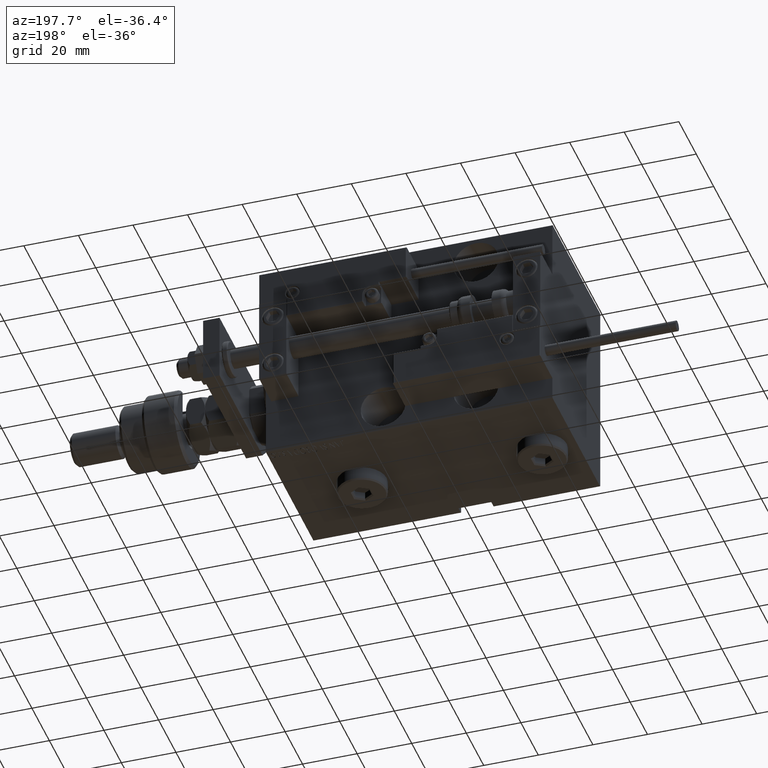
[diagram: clean part render]
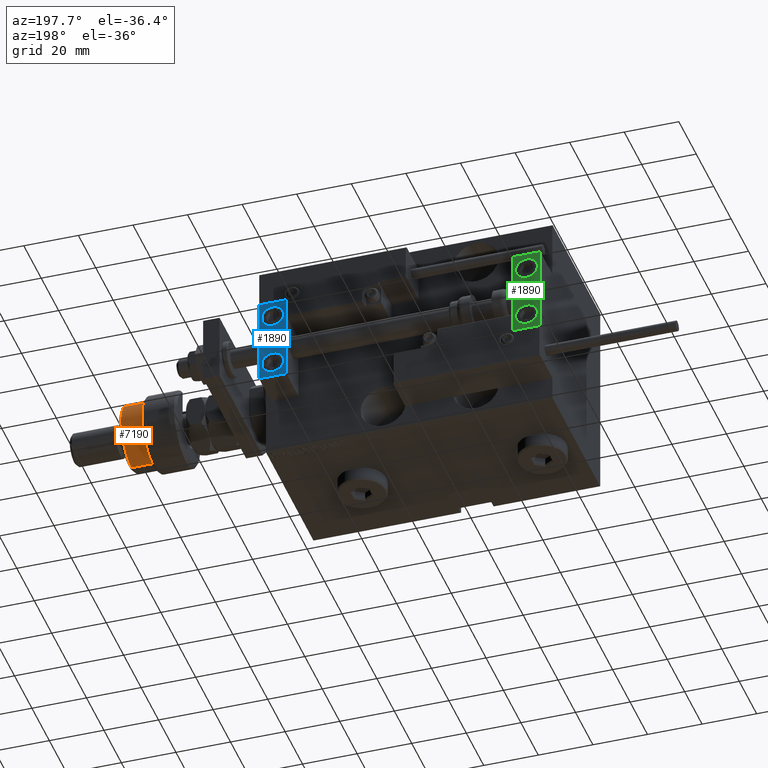
[diagram: same view with three faces highlighted in distinct colors, each labeled with its STEP entity id]
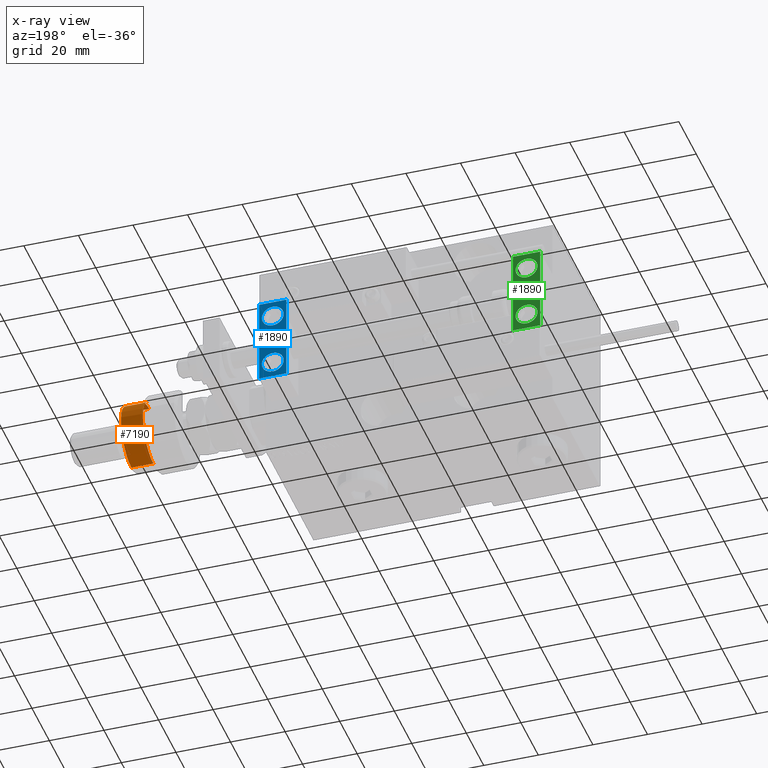
[diagram: x-ray of the same camera — body ghosted, the three highlighted faces saturated]
A machine part, auxiliary view with three faces highlighted in distinct colors.
The next image is the same camera in x-ray (body ghosted, the three faces saturated) — at least one of them is partly hidden behind the body in this view.
Their STEP definitions:

[orange] entity #7190 — the highlighted cylindrical surface (edge-blend (fillet) strip) has radius 12 mm, axis along (-1, -0, 0).
#3060 = CIRCLE ( 'NONE', #11763, 12.00000000000000178 ) ;
#5576 = EDGE_CURVE ( 'NONE', #53391, #20220, #3060, .T. ) ;
#6259 = DIRECTION ( 'NONE',  ( 0.000000000000000000, 0.000000000000000000, 1.000000000000000000 ) ) ;
#7190 = ADVANCED_FACE ( 'NONE', ( #16830 ), #53733, .T. ) ;
#7844 = ORIENTED_EDGE ( 'NONE', *, *, #24364, .F. ) ;
#8416 = CARTESIAN_POINT ( 'NONE',  ( 12.00000000000000178, 1.469576158976824144E-15, 13.00000000000000000 ) ) ;
#8796 = LINE ( 'NONE', #21670, #34477 ) ;
#10046 = DIRECTION ( 'NONE',  ( 1.000000000000000000, 0.000000000000000000, 0.000000000000000000 ) ) ;
#10848 = DIRECTION ( 'NONE',  ( -0.000000000000000000, -0.000000000000000000, -1.000000000000000000 ) ) ;
#11763 = AXIS2_PLACEMENT_3D ( 'NONE', #48072, #39050, #10046 ) ;
#13193 = ORIENTED_EDGE ( 'NONE', *, *, #24051, .T. ) ;
#13290 = ORIENTED_EDGE ( 'NONE', *, *, #5576, .T. ) ;
#13495 = CIRCLE ( 'NONE', #26572, 12.00000000000000178 ) ;
#14358 = AXIS2_PLACEMENT_3D ( 'NONE', #43735, #6259, #30600 ) ;
#14381 = VECTOR ( 'NONE', #36607, 1000.000000000000000 ) ;
#14529 = CARTESIAN_POINT ( 'NONE',  ( -10.39230484541326760, 6.000000000000000000, 13.00000000000000000 ) ) ;
#15111 = ORIENTED_EDGE ( 'NONE', *, *, #24495, .T. ) ;
#16085 = VECTOR ( 'NONE', #10848, 1000.000000000000000 ) ;
#16830 = FACE_OUTER_BOUND ( 'NONE', #28903, .T. ) ;
#19376 = LINE ( 'NONE', #19910, #14381 ) ;
#19865 = CARTESIAN_POINT ( 'NONE',  ( -12.00000000000000178, 0.000000000000000000, 22.00000000000000000 ) ) ;
#19910 = CARTESIAN_POINT ( 'NONE',  ( -10.39230484541326760, 6.000000000000000000, 22.00000000000000000 ) ) ;
#20220 = VERTEX_POINT ( 'NONE', #23702 ) ;
#21486 = VERTEX_POINT ( 'NONE', #8416 ) ;
#21670 = CARTESIAN_POINT ( 'NONE',  ( 12.00000000000000178, 1.469576158976824144E-15, 22.00000000000000000 ) ) ;
#22457 = CARTESIAN_POINT ( 'NONE',  ( -12.00000000000000178, 0.000000000000000000, 14.50000000000000000 ) ) ;
#23702 = CARTESIAN_POINT ( 'NONE',  ( 12.00000000000000178, 1.469576158976824144E-15, 20.99999999999998224 ) ) ;
#24051 = EDGE_CURVE ( 'NONE', #21486, #25365, #38813, .T. ) ;
#24071 = ORIENTED_EDGE ( 'NONE', *, *, #48147, .T. ) ;
#24364 = EDGE_CURVE ( 'NONE', #46827, #48201, #13495, .T. ) ;
#24406 = DIRECTION ( 'NONE',  ( 0.000000000000000000, 0.000000000000000000, -1.000000000000000000 ) ) ;
#24495 = EDGE_CURVE ( 'NONE', #20220, #21486, #8796, .T. ) ;
#25365 = VERTEX_POINT ( 'NONE', #14529 ) ;
#25753 = CARTESIAN_POINT ( 'NONE',  ( -12.00000000000000178, 0.000000000000000000, 20.99999999999998224 ) ) ;
#26572 = AXIS2_PLACEMENT_3D ( 'NONE', #53909, #24406, #53108 ) ;
#28903 = EDGE_LOOP ( 'NONE', ( #13290, #15111, #13193, #24071, #7844, #43122 ) ) ;
#30600 = DIRECTION ( 'NONE',  ( 1.000000000000000000, 0.000000000000000000, 0.000000000000000000 ) ) ;
#32705 = DIRECTION ( 'NONE',  ( -0.000000000000000000, -0.000000000000000000, -1.000000000000000000 ) ) ;
#32984 = LINE ( 'NONE', #19865, #16085 ) ;
#34243 = DIRECTION ( 'NONE',  ( -0.000000000000000000, -0.000000000000000000, -1.000000000000000000 ) ) ;
#34477 = VECTOR ( 'NONE', #34243, 1000.000000000000000 ) ;
#36607 = DIRECTION ( 'NONE',  ( 0.000000000000000000, 0.000000000000000000, 1.000000000000000000 ) ) ;
#37091 = CARTESIAN_POINT ( 'NONE',  ( 0.000000000000000000, 0.000000000000000000, 22.00000000000000000 ) ) ;
#38813 = CIRCLE ( 'NONE', #14358, 12.00000000000000178 ) ;
#39050 = DIRECTION ( 'NONE',  ( 0.000000000000000000, 0.000000000000000000, -1.000000000000000000 ) ) ;
#41727 = DIRECTION ( 'NONE',  ( -1.000000000000000000, 0.000000000000000000, 0.000000000000000000 ) ) ;
#43122 = ORIENTED_EDGE ( 'NONE', *, *, #50789, .F. ) ;
#43735 = CARTESIAN_POINT ( 'NONE',  ( 0.000000000000000000, 0.000000000000000000, 13.00000000000000000 ) ) ;
#46827 = VERTEX_POINT ( 'NONE', #22457 ) ;
#48072 = CARTESIAN_POINT ( 'NONE',  ( 0.000000000000000000, 0.000000000000000000, 20.99999999999998224 ) ) ;
#48147 = EDGE_CURVE ( 'NONE', #25365, #48201, #19376, .T. ) ;
#48201 = VERTEX_POINT ( 'NONE', #53039 ) ;
#50789 = EDGE_CURVE ( 'NONE', #53391, #46827, #32984, .T. ) ;
#53039 = CARTESIAN_POINT ( 'NONE',  ( -10.39230484541326582, 5.999999999999998224, 14.50000000000000000 ) ) ;
#53108 = DIRECTION ( 'NONE',  ( -1.000000000000000000, 0.000000000000000000, 0.000000000000000000 ) ) ;
#53197 = AXIS2_PLACEMENT_3D ( 'NONE', #37091, #32705, #41727 ) ;
#53391 = VERTEX_POINT ( 'NONE', #25753 ) ;
#53733 = CYLINDRICAL_SURFACE ( 'NONE', #53197, 12.00000000000000178 ) ;
#53909 = CARTESIAN_POINT ( 'NONE',  ( 0.000000000000000000, 0.000000000000000000, 14.50000000000000000 ) ) ;

[blue] entity #1890 — the highlighted planar face has unit normal (0, 1, 0).
#631 = AXIS2_PLACEMENT_3D ( 'NONE', #15617, #45663, #7395 ) ;
#1890 = ADVANCED_FACE ( 'NONE', ( #15824, #53000, #23244 ), #40710, .T. ) ;
#2143 = AXIS2_PLACEMENT_3D ( 'NONE', #11187, #3241, #19402 ) ;
#2382 = EDGE_CURVE ( 'NONE', #40215, #10575, #38706, .T. ) ;
#3241 = DIRECTION ( 'NONE',  ( -0.000000000000000000, 1.000000000000000000, 0.000000000000000000 ) ) ;
#3873 = CARTESIAN_POINT ( 'NONE',  ( 0.000000000000000000, 7.000000000000000000, 15.99999999999999289 ) ) ;
#6593 = DIRECTION ( 'NONE',  ( 1.848892746611746419E-32, -1.000000000000000000, 6.616381192988677562E-17 ) ) ;
#7395 = DIRECTION ( 'NONE',  ( 0.000000000000000000, 0.000000000000000000, 1.000000000000000000 ) ) ;
#7964 = LINE ( 'NONE', #3873, #25359 ) ;
#8143 = VECTOR ( 'NONE', #45800, 1000.000000000000000 ) ;
#8552 = ORIENTED_EDGE ( 'NONE', *, *, #31765, .T. ) ;
#10575 = VERTEX_POINT ( 'NONE', #49957 ) ;
#11187 = CARTESIAN_POINT ( 'NONE',  ( 10.00000000000000000, 7.000000000000000000, 15.99999999999999289 ) ) ;
#11553 = ORIENTED_EDGE ( 'NONE', *, *, #32798, .T. ) ;
#11894 = LINE ( 'NONE', #33502, #8143 ) ;
#12041 = VECTOR ( 'NONE', #44712, 1000.000000000000000 ) ;
#13694 = CARTESIAN_POINT ( 'NONE',  ( 0.000000000000000000, 7.000000000000000000, 15.99999999999999289 ) ) ;
#15240 = CARTESIAN_POINT ( 'NONE',  ( 5.000000000000000888, 6.999999999999999112, -10.00000000000000178 ) ) ;
#15617 = CARTESIAN_POINT ( 'NONE',  ( 5.000000000000000888, 7.000000000000000888, 10.00000000000000178 ) ) ;
#15824 = FACE_OUTER_BOUND ( 'NONE', #31437, .T. ) ;
#16155 = VERTEX_POINT ( 'NONE', #38845 ) ;
#16537 = LINE ( 'NONE', #20100, #12041 ) ;
#17308 = EDGE_CURVE ( 'NONE', #29604, #38435, #19885, .T. ) ;
#17646 = CARTESIAN_POINT ( 'NONE',  ( 5.000000000000000888, 6.999999999999999112, -10.00000000000000178 ) ) ;
#19402 = DIRECTION ( 'NONE',  ( 0.000000000000000000, -0.000000000000000000, 1.000000000000000000 ) ) ;
#19744 = VERTEX_POINT ( 'NONE', #50661 ) ;
#19859 = CIRCLE ( 'NONE', #631, 4.000000000000000000 ) ;
#19885 = CIRCLE ( 'NONE', #39958, 4.000000000000000888 ) ;
#20100 = CARTESIAN_POINT ( 'NONE',  ( 10.00000000000000000, 7.000000000000000000, 15.99999999999999289 ) ) ;
#20556 = DIRECTION ( 'NONE',  ( 0.000000000000000000, 0.000000000000000000, -1.000000000000000000 ) ) ;
#21470 = EDGE_LOOP ( 'NONE', ( #24895, #51477 ) ) ;
#21767 = CARTESIAN_POINT ( 'NONE',  ( 10.00000000000000000, 7.000000000000000000, -16.00000000000000711 ) ) ;
#23244 = FACE_BOUND ( 'NONE', #46505, .T. ) ;
#23284 = DIRECTION ( 'NONE',  ( 0.000000000000000000, 0.000000000000000000, 1.000000000000000000 ) ) ;
#24895 = ORIENTED_EDGE ( 'NONE', *, *, #42449, .F. ) ;
#25167 = AXIS2_PLACEMENT_3D ( 'NONE', #44072, #6593, #23284 ) ;
#25359 = VECTOR ( 'NONE', #20556, 1000.000000000000000 ) ;
#26124 = DIRECTION ( 'NONE',  ( -1.000000000000000000, -0.000000000000000000, -0.000000000000000000 ) ) ;
#26354 = CARTESIAN_POINT ( 'NONE',  ( 5.000000000000001776, 6.999999999999999112, -14.00000000000000178 ) ) ;
#26999 = ORIENTED_EDGE ( 'NONE', *, *, #40770, .F. ) ;
#27984 = VERTEX_POINT ( 'NONE', #13694 ) ;
#28076 = DIRECTION ( 'NONE',  ( 0.000000000000000000, 0.000000000000000000, 1.000000000000000000 ) ) ;
#29604 = VERTEX_POINT ( 'NONE', #26354 ) ;
#30059 = ORIENTED_EDGE ( 'NONE', *, *, #48893, .F. ) ;
#31106 = EDGE_CURVE ( 'NONE', #33446, #40215, #16537, .T. ) ;
#31437 = EDGE_LOOP ( 'NONE', ( #26999, #30059, #50256, #38420 ) ) ;
#31765 = EDGE_CURVE ( 'NONE', #19744, #16155, #48750, .T. ) ;
#32742 = VECTOR ( 'NONE', #26124, 1000.000000000000000 ) ;
#32798 = EDGE_CURVE ( 'NONE', #16155, #19744, #19859, .T. ) ;
#33446 = VERTEX_POINT ( 'NONE', #47474 ) ;
#33502 = CARTESIAN_POINT ( 'NONE',  ( 10.00000000000000000, 7.000000000000000000, 15.99999999999999289 ) ) ;
#35742 = CARTESIAN_POINT ( 'NONE',  ( 5.000000000000000888, 6.999999999999999112, -6.000000000000000888 ) ) ;
#35958 = AXIS2_PLACEMENT_3D ( 'NONE', #17646, #50480, #46909 ) ;
#38420 = ORIENTED_EDGE ( 'NONE', *, *, #2382, .T. ) ;
#38435 = VERTEX_POINT ( 'NONE', #35742 ) ;
#38706 = LINE ( 'NONE', #21767, #32742 ) ;
#38845 = CARTESIAN_POINT ( 'NONE',  ( 5.000000000000000888, 7.000000000000000888, 14.00000000000000178 ) ) ;
#39864 = DIRECTION ( 'NONE',  ( 0.000000000000000000, 1.000000000000000000, -6.065466699219605527E-17 ) ) ;
#39958 = AXIS2_PLACEMENT_3D ( 'NONE', #15240, #39864, #28076 ) ;
#40215 = VERTEX_POINT ( 'NONE', #50567 ) ;
#40710 = PLANE ( 'NONE',  #2143 ) ;
#40770 = EDGE_CURVE ( 'NONE', #27984, #10575, #7964, .T. ) ;
#42449 = EDGE_CURVE ( 'NONE', #38435, #29604, #42921, .T. ) ;
#42921 = CIRCLE ( 'NONE', #35958, 4.000000000000000888 ) ;
#44072 = CARTESIAN_POINT ( 'NONE',  ( 5.000000000000000888, 7.000000000000000888, 10.00000000000000178 ) ) ;
#44712 = DIRECTION ( 'NONE',  ( 0.000000000000000000, 0.000000000000000000, -1.000000000000000000 ) ) ;
#45663 = DIRECTION ( 'NONE',  ( 1.848892746611746419E-32, -1.000000000000000000, 6.616381192988677562E-17 ) ) ;
#45800 = DIRECTION ( 'NONE',  ( -1.000000000000000000, -0.000000000000000000, -0.000000000000000000 ) ) ;
#46505 = EDGE_LOOP ( 'NONE', ( #11553, #8552 ) ) ;
#46909 = DIRECTION ( 'NONE',  ( 0.000000000000000000, 0.000000000000000000, 1.000000000000000000 ) ) ;
#47474 = CARTESIAN_POINT ( 'NONE',  ( 10.00000000000000000, 7.000000000000000000, 15.99999999999999289 ) ) ;
#48750 = CIRCLE ( 'NONE', #25167, 4.000000000000000000 ) ;
#48893 = EDGE_CURVE ( 'NONE', #33446, #27984, #11894, .T. ) ;
#49957 = CARTESIAN_POINT ( 'NONE',  ( 0.000000000000000000, 7.000000000000000000, -16.00000000000000711 ) ) ;
#50256 = ORIENTED_EDGE ( 'NONE', *, *, #31106, .T. ) ;
#50480 = DIRECTION ( 'NONE',  ( 0.000000000000000000, 1.000000000000000000, -6.065466699219605527E-17 ) ) ;
#50567 = CARTESIAN_POINT ( 'NONE',  ( 10.00000000000000000, 7.000000000000000000, -16.00000000000000711 ) ) ;
#50661 = CARTESIAN_POINT ( 'NONE',  ( 5.000000000000001776, 7.000000000000000888, 6.000000000000000888 ) ) ;
#51477 = ORIENTED_EDGE ( 'NONE', *, *, #17308, .F. ) ;
#53000 = FACE_BOUND ( 'NONE', #21470, .T. ) ;

[green] entity #1890 — the highlighted planar face has unit normal (-0, 1, -0).
#631 = AXIS2_PLACEMENT_3D ( 'NONE', #15617, #45663, #7395 ) ;
#1890 = ADVANCED_FACE ( 'NONE', ( #15824, #53000, #23244 ), #40710, .T. ) ;
#2143 = AXIS2_PLACEMENT_3D ( 'NONE', #11187, #3241, #19402 ) ;
#2382 = EDGE_CURVE ( 'NONE', #40215, #10575, #38706, .T. ) ;
#3241 = DIRECTION ( 'NONE',  ( -0.000000000000000000, 1.000000000000000000, 0.000000000000000000 ) ) ;
#3873 = CARTESIAN_POINT ( 'NONE',  ( 0.000000000000000000, 7.000000000000000000, 15.99999999999999289 ) ) ;
#6593 = DIRECTION ( 'NONE',  ( 1.848892746611746419E-32, -1.000000000000000000, 6.616381192988677562E-17 ) ) ;
#7395 = DIRECTION ( 'NONE',  ( 0.000000000000000000, 0.000000000000000000, 1.000000000000000000 ) ) ;
#7964 = LINE ( 'NONE', #3873, #25359 ) ;
#8143 = VECTOR ( 'NONE', #45800, 1000.000000000000000 ) ;
#8552 = ORIENTED_EDGE ( 'NONE', *, *, #31765, .T. ) ;
#10575 = VERTEX_POINT ( 'NONE', #49957 ) ;
#11187 = CARTESIAN_POINT ( 'NONE',  ( 10.00000000000000000, 7.000000000000000000, 15.99999999999999289 ) ) ;
#11553 = ORIENTED_EDGE ( 'NONE', *, *, #32798, .T. ) ;
#11894 = LINE ( 'NONE', #33502, #8143 ) ;
#12041 = VECTOR ( 'NONE', #44712, 1000.000000000000000 ) ;
#13694 = CARTESIAN_POINT ( 'NONE',  ( 0.000000000000000000, 7.000000000000000000, 15.99999999999999289 ) ) ;
#15240 = CARTESIAN_POINT ( 'NONE',  ( 5.000000000000000888, 6.999999999999999112, -10.00000000000000178 ) ) ;
#15617 = CARTESIAN_POINT ( 'NONE',  ( 5.000000000000000888, 7.000000000000000888, 10.00000000000000178 ) ) ;
#15824 = FACE_OUTER_BOUND ( 'NONE', #31437, .T. ) ;
#16155 = VERTEX_POINT ( 'NONE', #38845 ) ;
#16537 = LINE ( 'NONE', #20100, #12041 ) ;
#17308 = EDGE_CURVE ( 'NONE', #29604, #38435, #19885, .T. ) ;
#17646 = CARTESIAN_POINT ( 'NONE',  ( 5.000000000000000888, 6.999999999999999112, -10.00000000000000178 ) ) ;
#19402 = DIRECTION ( 'NONE',  ( 0.000000000000000000, -0.000000000000000000, 1.000000000000000000 ) ) ;
#19744 = VERTEX_POINT ( 'NONE', #50661 ) ;
#19859 = CIRCLE ( 'NONE', #631, 4.000000000000000000 ) ;
#19885 = CIRCLE ( 'NONE', #39958, 4.000000000000000888 ) ;
#20100 = CARTESIAN_POINT ( 'NONE',  ( 10.00000000000000000, 7.000000000000000000, 15.99999999999999289 ) ) ;
#20556 = DIRECTION ( 'NONE',  ( 0.000000000000000000, 0.000000000000000000, -1.000000000000000000 ) ) ;
#21470 = EDGE_LOOP ( 'NONE', ( #24895, #51477 ) ) ;
#21767 = CARTESIAN_POINT ( 'NONE',  ( 10.00000000000000000, 7.000000000000000000, -16.00000000000000711 ) ) ;
#23244 = FACE_BOUND ( 'NONE', #46505, .T. ) ;
#23284 = DIRECTION ( 'NONE',  ( 0.000000000000000000, 0.000000000000000000, 1.000000000000000000 ) ) ;
#24895 = ORIENTED_EDGE ( 'NONE', *, *, #42449, .F. ) ;
#25167 = AXIS2_PLACEMENT_3D ( 'NONE', #44072, #6593, #23284 ) ;
#25359 = VECTOR ( 'NONE', #20556, 1000.000000000000000 ) ;
#26124 = DIRECTION ( 'NONE',  ( -1.000000000000000000, -0.000000000000000000, -0.000000000000000000 ) ) ;
#26354 = CARTESIAN_POINT ( 'NONE',  ( 5.000000000000001776, 6.999999999999999112, -14.00000000000000178 ) ) ;
#26999 = ORIENTED_EDGE ( 'NONE', *, *, #40770, .F. ) ;
#27984 = VERTEX_POINT ( 'NONE', #13694 ) ;
#28076 = DIRECTION ( 'NONE',  ( 0.000000000000000000, 0.000000000000000000, 1.000000000000000000 ) ) ;
#29604 = VERTEX_POINT ( 'NONE', #26354 ) ;
#30059 = ORIENTED_EDGE ( 'NONE', *, *, #48893, .F. ) ;
#31106 = EDGE_CURVE ( 'NONE', #33446, #40215, #16537, .T. ) ;
#31437 = EDGE_LOOP ( 'NONE', ( #26999, #30059, #50256, #38420 ) ) ;
#31765 = EDGE_CURVE ( 'NONE', #19744, #16155, #48750, .T. ) ;
#32742 = VECTOR ( 'NONE', #26124, 1000.000000000000000 ) ;
#32798 = EDGE_CURVE ( 'NONE', #16155, #19744, #19859, .T. ) ;
#33446 = VERTEX_POINT ( 'NONE', #47474 ) ;
#33502 = CARTESIAN_POINT ( 'NONE',  ( 10.00000000000000000, 7.000000000000000000, 15.99999999999999289 ) ) ;
#35742 = CARTESIAN_POINT ( 'NONE',  ( 5.000000000000000888, 6.999999999999999112, -6.000000000000000888 ) ) ;
#35958 = AXIS2_PLACEMENT_3D ( 'NONE', #17646, #50480, #46909 ) ;
#38420 = ORIENTED_EDGE ( 'NONE', *, *, #2382, .T. ) ;
#38435 = VERTEX_POINT ( 'NONE', #35742 ) ;
#38706 = LINE ( 'NONE', #21767, #32742 ) ;
#38845 = CARTESIAN_POINT ( 'NONE',  ( 5.000000000000000888, 7.000000000000000888, 14.00000000000000178 ) ) ;
#39864 = DIRECTION ( 'NONE',  ( 0.000000000000000000, 1.000000000000000000, -6.065466699219605527E-17 ) ) ;
#39958 = AXIS2_PLACEMENT_3D ( 'NONE', #15240, #39864, #28076 ) ;
#40215 = VERTEX_POINT ( 'NONE', #50567 ) ;
#40710 = PLANE ( 'NONE',  #2143 ) ;
#40770 = EDGE_CURVE ( 'NONE', #27984, #10575, #7964, .T. ) ;
#42449 = EDGE_CURVE ( 'NONE', #38435, #29604, #42921, .T. ) ;
#42921 = CIRCLE ( 'NONE', #35958, 4.000000000000000888 ) ;
#44072 = CARTESIAN_POINT ( 'NONE',  ( 5.000000000000000888, 7.000000000000000888, 10.00000000000000178 ) ) ;
#44712 = DIRECTION ( 'NONE',  ( 0.000000000000000000, 0.000000000000000000, -1.000000000000000000 ) ) ;
#45663 = DIRECTION ( 'NONE',  ( 1.848892746611746419E-32, -1.000000000000000000, 6.616381192988677562E-17 ) ) ;
#45800 = DIRECTION ( 'NONE',  ( -1.000000000000000000, -0.000000000000000000, -0.000000000000000000 ) ) ;
#46505 = EDGE_LOOP ( 'NONE', ( #11553, #8552 ) ) ;
#46909 = DIRECTION ( 'NONE',  ( 0.000000000000000000, 0.000000000000000000, 1.000000000000000000 ) ) ;
#47474 = CARTESIAN_POINT ( 'NONE',  ( 10.00000000000000000, 7.000000000000000000, 15.99999999999999289 ) ) ;
#48750 = CIRCLE ( 'NONE', #25167, 4.000000000000000000 ) ;
#48893 = EDGE_CURVE ( 'NONE', #33446, #27984, #11894, .T. ) ;
#49957 = CARTESIAN_POINT ( 'NONE',  ( 0.000000000000000000, 7.000000000000000000, -16.00000000000000711 ) ) ;
#50256 = ORIENTED_EDGE ( 'NONE', *, *, #31106, .T. ) ;
#50480 = DIRECTION ( 'NONE',  ( 0.000000000000000000, 1.000000000000000000, -6.065466699219605527E-17 ) ) ;
#50567 = CARTESIAN_POINT ( 'NONE',  ( 10.00000000000000000, 7.000000000000000000, -16.00000000000000711 ) ) ;
#50661 = CARTESIAN_POINT ( 'NONE',  ( 5.000000000000001776, 7.000000000000000888, 6.000000000000000888 ) ) ;
#51477 = ORIENTED_EDGE ( 'NONE', *, *, #17308, .F. ) ;
#53000 = FACE_BOUND ( 'NONE', #21470, .T. ) ;